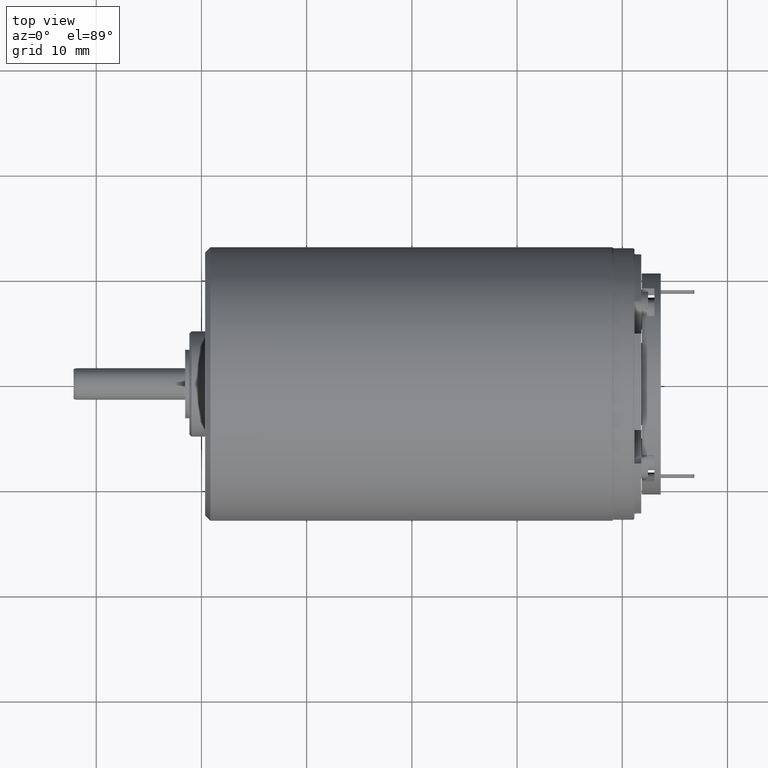
[diagram: clean part render]
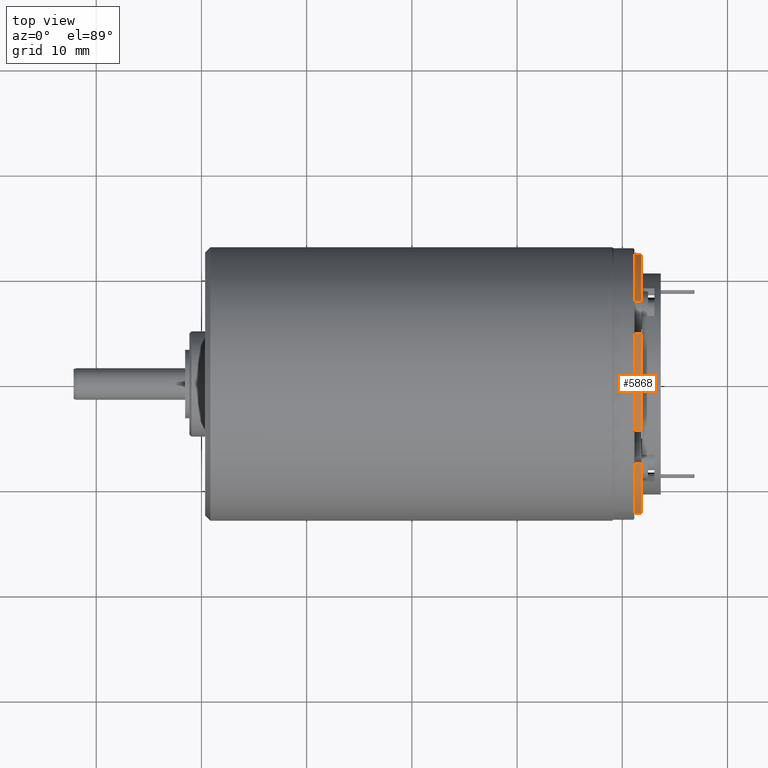
[diagram: same view with one face highlighted and labeled with its STEP entity id]
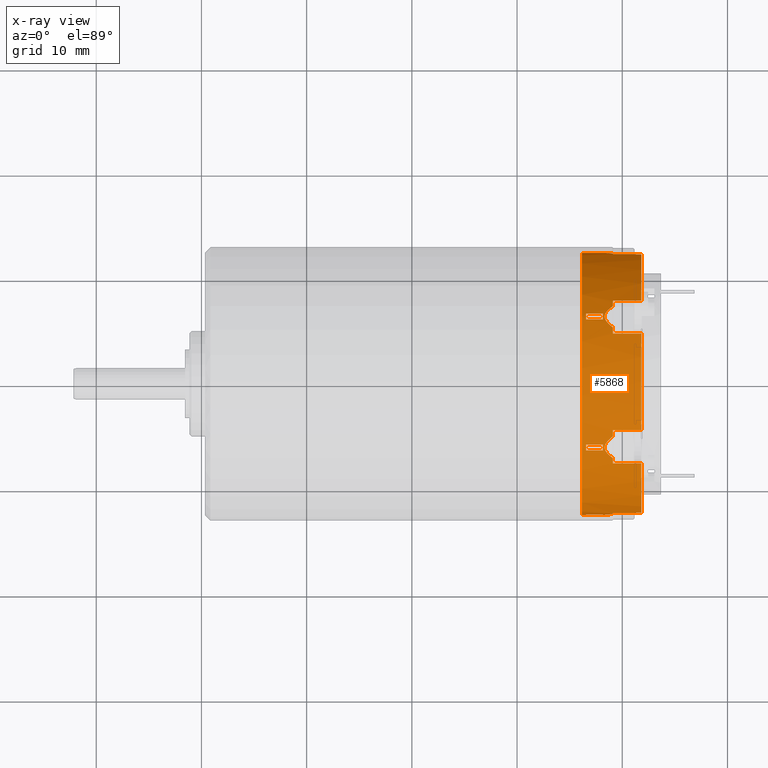
[diagram: x-ray of the same camera — body ghosted, the highlighted face saturated]
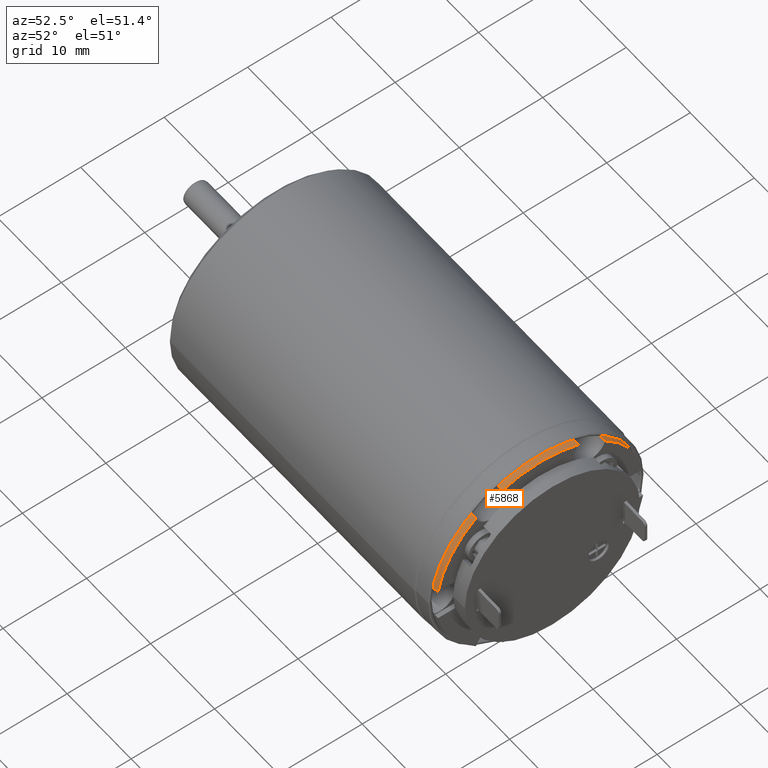
[diagram: same view with one face highlighted and labeled with its STEP entity id]
A machine part, top view. The second image highlights one B-rep face of the part: STEP entity #5868.
The next image is the same camera in x-ray: the body ghosted, the highlighted face saturated — about 0% of this face is hidden behind the body in this view.
A second angle (auxiliary view) of the same face is appended — the face is thin or edge-on in the first view.
In plain terms, the highlighted cylindrical surface (partial cylindrical patch) has radius 12.45 mm, axis along (-1, 0, 0).
Its self-contained STEP definition (entity closure, byte-faithful):
#891=CARTESIAN_POINT('',(2.180271496615E1,0.E0,0.E0));
#892=DIRECTION('',(-1.E0,0.E0,0.E0));
#893=DIRECTION('',(0.E0,6.208052959691E-1,7.839647852402E-1));
#894=AXIS2_PLACEMENT_3D('',#891,#892,#893);
#950=CARTESIAN_POINT('',(2.180271496615E1,0.E0,0.E0));
#951=DIRECTION('',(-1.E0,0.E0,0.E0));
#952=DIRECTION('',(0.E0,-9.870126466330E-1,1.606425702811E-1));
#953=AXIS2_PLACEMENT_3D('',#950,#951,#952);
#965=CARTESIAN_POINT('',(2.180271496615E1,0.E0,0.E0));
#966=DIRECTION('',(-1.E0,0.E0,0.E0));
#967=DIRECTION('',(0.E0,-3.685307717057E-1,9.296155497333E-1));
#968=AXIS2_PLACEMENT_3D('',#965,#966,#967);
#1030=DIRECTION('',(-1.E0,-1.644774851297E-13,-1.690828547133E-13));
#1031=VECTOR('',#1030,2.7E0);
#1032=CARTESIAN_POINT('',(2.180271496615E1,4.588208107736E0,1.157371359418E1));
#1033=LINE('',#1032,#1031);
#1034=DIRECTION('',(1.E0,0.E0,3.532976380585E-13));
#1035=VECTOR('',#1034,2.7E0);
#1036=CARTESIAN_POINT('',(1.910271496615E1,7.729025934817E0,9.760361576240E0));
#1037=LINE('',#1036,#1035);
#1038=DIRECTION('',(1.E0,0.E0,0.E0));
#1039=VECTOR('',#1038,4.E-1);
#1040=CARTESIAN_POINT('',(1.615271496615E1,1.245E1,0.E0));
#1041=LINE('',#1040,#1039);
#1042=DIRECTION('',(1.E0,3.124141150696E-13,0.E0));
#1043=VECTOR('',#1042,1.705771366E-1);
#1044=CARTESIAN_POINT('',(1.815271496615E1,1.245E1,0.E0));
#1045=LINE('',#1044,#1043);
#1046=CARTESIAN_POINT('',(1.910271496615E1,7.215436275989E0,1.014593412886E1));
#1047=CARTESIAN_POINT('',(1.900554157417E1,7.147763870696E0,1.019406039519E1));
#1048=CARTESIAN_POINT('',(1.882669407456E1,7.013894538743E0,1.028723900721E1));
#1049=CARTESIAN_POINT('',(1.860701999276E1,6.814206145042E0,1.042055842380E1));
#1050=CARTESIAN_POINT('',(1.844262371837E1,6.614103594959E0,1.054869483037E1));
#1051=CARTESIAN_POINT('',(1.834340605230E1,6.414230633054E0,1.067133216690E1));
#1052=CARTESIAN_POINT('',(1.831323669120E1,6.225319845262E0,1.078254737841E1));
#1053=CARTESIAN_POINT('',(1.834339979985E1,6.034546346835E0,1.089054344214E1));
#1054=CARTESIAN_POINT('',(1.844261722665E1,5.828395644684E0,1.100232401110E1));
#1055=CARTESIAN_POINT('',(1.860700915962E1,5.617377356940E0,1.111154870072E1));
#1056=CARTESIAN_POINT('',(1.882668278056E1,5.402072706062E0,1.121782575153E1));
#1057=CARTESIAN_POINT('',(1.900553676291E1,5.254437073495E0,1.128717357958E1));
#1058=CARTESIAN_POINT('',(1.910271496615E1,5.178918562721E0,1.132171817882E1));
#1060=CARTESIAN_POINT('',(1.910271496615E1,-5.178918562721E0,1.132171817882E1));
#1061=CARTESIAN_POINT('',(1.900554157417E1,-5.254433334598E0,1.128717528987E1));
#1062=CARTESIAN_POINT('',(1.882669407456E1,-5.402063045677E0,1.121783035362E1));
#1063=CARTESIAN_POINT('',(1.860701999276E1,-5.617365244109E0,1.111155484013E1));
#1064=CARTESIAN_POINT('',(1.844262371837E1,-5.828385902392E0,1.100232915168E1));
#1065=CARTESIAN_POINT('',(1.834340605230E1,-6.034529432233E0,1.089055275741E1));
#1066=CARTESIAN_POINT('',(1.831323669120E1,-6.225300024580E0,1.078255882188E1));
#1067=CARTESIAN_POINT('',(1.834339979985E1,-6.414214108494E0,1.067134215774E1));
#1068=CARTESIAN_POINT('',(1.844261722665E1,-6.614094271937E0,1.054870069715E1));
#1069=CARTESIAN_POINT('',(1.860700915962E1,-6.814194771747E0,1.042056584411E1));
#1070=CARTESIAN_POINT('',(1.882668278056E1,-7.013885723019E0,1.028724507230E1));
#1071=CARTESIAN_POINT('',(1.900553676291E1,-7.147760520092E0,1.019406277802E1));
#1072=CARTESIAN_POINT('',(1.910271496615E1,-7.215436275989E0,1.014593412886E1));
#1074=DIRECTION('',(-1.E0,3.124141150696E-13,-9.203199139759E-14));
#1075=VECTOR('',#1074,1.705771366E-1);
#1076=CARTESIAN_POINT('',(1.832329210275E1,-1.245E1,0.E0));
#1077=LINE('',#1076,#1075);
#1078=DIRECTION('',(-1.E0,0.E0,4.128234476237E-14));
#1079=VECTOR('',#1078,4.E-1);
#1080=CARTESIAN_POINT('',(1.655271496615E1,-1.245E1,-1.811141725284E-14));
#1081=LINE('',#1080,#1079);
#1082=CARTESIAN_POINT('',(1.655271496615E1,0.E0,0.E0));
#1083=DIRECTION('',(-1.E0,0.E0,0.E0));
#1084=DIRECTION('',(0.E0,-5.224274782876E-1,8.526837220975E-1));
#1085=AXIS2_PLACEMENT_3D('',#1082,#1083,#1084);
#1094=DIRECTION('',(1.E0,0.E0,0.E0));
#1095=VECTOR('',#1094,1.6E0);
#1096=CARTESIAN_POINT('',(1.655271496615E1,-5.941541839653E0,1.094077604961E1));
#1097=LINE('',#1096,#1095);
#1098=DIRECTION('',(-1.E0,-1.643130076445E-13,-3.286260152890E-13));
#1099=VECTOR('',#1098,1.6E0);
#1100=CARTESIAN_POINT('',(1.815271496615E1,-6.504222104681E0,1.061591234011E1));
#1101=LINE('',#1100,#1099);
#1102=CARTESIAN_POINT('',(1.815271496615E1,0.E0,0.E0));
#1103=DIRECTION('',(1.E0,0.E0,0.E0));
#1104=DIRECTION('',(0.E0,-4.772322762773E-1,8.787771927395E-1));
#1105=AXIS2_PLACEMENT_3D('',#1102,#1103,#1104);
#1112=CARTESIAN_POINT('',(1.655271496615E1,0.E0,0.E0));
#1113=DIRECTION('',(-1.E0,0.E0,0.E0));
#1114=DIRECTION('',(0.E0,4.772488368662E-1,8.787681990775E-1));
#1115=AXIS2_PLACEMENT_3D('',#1112,#1113,#1114);
#1124=DIRECTION('',(1.E0,0.E0,0.E0));
#1125=VECTOR('',#1124,1.6E0);
#1126=CARTESIAN_POINT('',(1.655271496615E1,6.504422161813E0,1.061578976529E1));
#1127=LINE('',#1126,#1125);
#1128=DIRECTION('',(-1.E0,-2.914335439641E-13,1.931788062848E-13));
#1129=VECTOR('',#1128,1.6E0);
#1130=CARTESIAN_POINT('',(1.815271496615E1,5.941748018985E0,1.094066407851E1));
#1131=LINE('',#1130,#1129);
#1132=CARTESIAN_POINT('',(1.815271496615E1,0.E0,0.E0));
#1133=DIRECTION('',(1.E0,0.E0,0.E0));
#1134=DIRECTION('',(0.E0,5.224435471335E-1,8.526738767305E-1));
#1135=AXIS2_PLACEMENT_3D('',#1132,#1133,#1134);
#1235=CARTESIAN_POINT('',(1.655271496615E1,0.E0,0.E0));
#1236=DIRECTION('',(-1.E0,0.E0,0.E0));
#1237=DIRECTION('',(0.E0,-1.E0,0.E0));
#1238=AXIS2_PLACEMENT_3D('',#1235,#1236,#1237);
#1254=DIRECTION('',(1.E0,0.E0,0.E0));
#1255=VECTOR('',#1254,1.6E0);
#1256=CARTESIAN_POINT('',(1.655271496615E1,-1.244576086957E1,
3.248636292337E-1));
#1257=LINE('',#1256,#1255);
#1262=CARTESIAN_POINT('',(1.815271496615E1,0.E0,0.E0));
#1263=DIRECTION('',(1.E0,0.E0,0.E0));
#1264=DIRECTION('',(0.E0,-9.996595075956E-1,2.609346419552E-2));
#1265=AXIS2_PLACEMENT_3D('',#1262,#1263,#1264);
#1293=CARTESIAN_POINT('',(1.832329210275E1,-1.245E1,0.E0));
#1295=CARTESIAN_POINT('',(1.832329210275E1,-1.245E1,0.E0));
#1296=CARTESIAN_POINT('',(1.832329210275E1,-1.245E1,3.629892691979E-2));
#1297=CARTESIAN_POINT('',(1.832845457964E1,-1.244967997183E1,
1.095079517601E-1));
#1298=CARTESIAN_POINT('',(1.835179518574E1,-1.244822457399E1,
2.199841964210E-1));
#1299=CARTESIAN_POINT('',(1.839201593320E1,-1.244568655556E1,
3.346012128070E-1));
#1300=CARTESIAN_POINT('',(1.845090896984E1,-1.244190156447E1,
4.546021106804E-1));
#1301=CARTESIAN_POINT('',(1.853100248492E1,-1.243662279646E1,
5.819673893021E-1));
#1302=CARTESIAN_POINT('',(1.863466567999E1,-1.242956440593E1,
7.175954500490E-1));
#1303=CARTESIAN_POINT('',(1.876289827314E1,-1.242047852958E1,
8.610992582666E-1));
#1304=CARTESIAN_POINT('',(1.891680900666E1,-1.240905672689E1,1.012930306687E0));
#1305=CARTESIAN_POINT('',(1.903774372681E1,-1.239959833455E1,1.120510508880E0));
#1306=CARTESIAN_POINT('',(1.910271496615E1,-1.239435483871E1,1.175784049966E0));
#1318=CARTESIAN_POINT('',(1.910271496615E1,0.E0,0.E0));
#1319=DIRECTION('',(-1.E0,0.E0,0.E0));
#1320=DIRECTION('',(0.E0,-9.955305091333E-1,9.444048594102E-2));
#1321=AXIS2_PLACEMENT_3D('',#1318,#1319,#1320);
#1342=DIRECTION('',(1.E0,4.085620730621E-13,6.600780528226E-14));
#1343=VECTOR('',#1342,2.2E0);
#1344=CARTESIAN_POINT('',(1.910271496615E1,-1.231723404255E1,1.813352017941E0));
#1345=LINE('',#1344,#1343);
#1356=CARTESIAN_POINT('',(2.130271496615E1,0.E0,0.E0));
#1357=DIRECTION('',(-1.E0,0.E0,0.E0));
#1358=DIRECTION('',(0.E0,-9.893360676750E-1,1.456507644932E-1));
#1359=AXIS2_PLACEMENT_3D('',#1356,#1357,#1358);
#1404=DIRECTION('',(1.E0,5.364597654989E-13,-3.685940441756E-14));
#1405=VECTOR('',#1404,5.E-1);
#1406=CARTESIAN_POINT('',(2.130271496615E1,-1.228830745058E1,2.E0));
#1407=LINE('',#1406,#1405);
#1604=DIRECTION('',(-1.E0,-5.258016244625E-13,-8.171241461241E-14));
#1605=VECTOR('',#1604,5.E-1);
#1606=CARTESIAN_POINT('',(2.180271496615E1,1.228830745058E1,2.E0));
#1607=LINE('',#1606,#1605);
#1632=CARTESIAN_POINT('',(2.130271496615E1,0.E0,0.E0));
#1633=DIRECTION('',(-1.E0,0.E0,0.E0));
#1634=DIRECTION('',(0.E0,9.870126466330E-1,1.606425702811E-1));
#1635=AXIS2_PLACEMENT_3D('',#1632,#1633,#1634);
#1657=DIRECTION('',(-1.E0,-4.101769429161E-13,9.840613172814E-14));
#1658=VECTOR('',#1657,2.2E0);
#1659=CARTESIAN_POINT('',(2.130271496615E1,1.231723404255E1,1.813352017940E0));
#1660=LINE('',#1659,#1658);
#1676=CARTESIAN_POINT('',(1.910271496615E1,0.E0,0.E0));
#1677=DIRECTION('',(-1.E0,0.E0,0.E0));
#1678=DIRECTION('',(0.E0,9.893360676750E-1,1.456507644932E-1));
#1679=AXIS2_PLACEMENT_3D('',#1676,#1677,#1678);
#1691=CARTESIAN_POINT('',(1.910271496615E1,1.239435483871E1,1.175784049966E0));
#1692=CARTESIAN_POINT('',(1.903819142609E1,1.239956220303E1,1.120891383935E0));
#1693=CARTESIAN_POINT('',(1.891793771405E1,1.240896972761E1,1.013955830340E0));
#1694=CARTESIAN_POINT('',(1.876441139774E1,1.242036859477E1,8.626677068914E-1));
#1695=CARTESIAN_POINT('',(1.863608246118E1,1.242946603312E1,7.192900811462E-1));
#1696=CARTESIAN_POINT('',(1.853221089793E1,1.243654207423E1,5.837079415812E-1));
#1697=CARTESIAN_POINT('',(1.845149073116E1,1.244186403509E1,4.557125834516E-1));
#1698=CARTESIAN_POINT('',(1.839213790391E1,1.244567885130E1,3.349219743573E-1));
#1699=CARTESIAN_POINT('',(1.835189097794E1,1.244821856613E1,2.203469959935E-1));
#1700=CARTESIAN_POINT('',(1.832842878804E1,1.244968159013E1,1.094337987637E-1));
#1701=CARTESIAN_POINT('',(1.832329210275E1,1.245E1,3.625611473060E-2));
#1702=CARTESIAN_POINT('',(1.832329210275E1,1.245E1,0.E0));
#1704=CARTESIAN_POINT('',(1.832329210275E1,1.245E1,0.E0));
#1806=CARTESIAN_POINT('',(1.815271496615E1,0.E0,0.E0));
#1807=DIRECTION('',(1.E0,0.E0,0.E0));
#1808=DIRECTION('',(0.E0,1.E0,0.E0));
#1809=AXIS2_PLACEMENT_3D('',#1806,#1807,#1808);
#1834=DIRECTION('',(-1.E0,6.017408793471E-13,-2.938968513001E-13));
#1835=VECTOR('',#1834,1.599999999999E0);
#1836=CARTESIAN_POINT('',(1.815271496615E1,1.244576086957E1,3.248636292342E-1));
#1837=LINE('',#1836,#1835);
#1838=CARTESIAN_POINT('',(1.655271496615E1,0.E0,0.E0));
#1839=DIRECTION('',(-1.E0,0.E0,0.E0));
#1840=DIRECTION('',(0.E0,9.996595075956E-1,2.609346419552E-2));
#1841=AXIS2_PLACEMENT_3D('',#1838,#1839,#1840);
#1863=CARTESIAN_POINT('',(1.615271496615E1,0.E0,0.E0));
#1864=DIRECTION('',(1.E0,0.E0,0.E0));
#1865=DIRECTION('',(0.E0,1.E0,0.E0));
#1866=AXIS2_PLACEMENT_3D('',#1863,#1864,#1865);
#2728=CARTESIAN_POINT('',(1.910271496615E1,0.E0,0.E0));
#2729=DIRECTION('',(-1.E0,0.E0,0.E0));
#2730=DIRECTION('',(0.E0,5.795531145374E-1,8.149344681813E-1));
#2731=AXIS2_PLACEMENT_3D('',#2728,#2729,#2730);
#2743=CARTESIAN_POINT('',(1.910271496615E1,0.E0,0.E0));
#2744=DIRECTION('',(-1.E0,0.E0,0.E0));
#2745=DIRECTION('',(0.E0,3.685307717057E-1,9.296155497333E-1));
#2746=AXIS2_PLACEMENT_3D('',#2743,#2744,#2745);
#2748=DIRECTION('',(-1.E0,1.180948343231E-13,1.118446898882E-14));
#2749=VECTOR('',#2748,2.7E0);
#2750=CARTESIAN_POINT('',(2.180271496615E1,-7.729025934817E0,9.760361576240E0));
#2751=LINE('',#2750,#2749);
#2752=DIRECTION('',(1.E0,0.E0,3.361919796050E-13));
#2753=VECTOR('',#2752,2.7E0);
#2754=CARTESIAN_POINT('',(1.910271496615E1,-4.588208107736E0,1.157371359418E1));
#2755=LINE('',#2754,#2753);
#2766=CARTESIAN_POINT('',(1.910271496615E1,0.E0,0.E0));
#2767=DIRECTION('',(-1.E0,0.E0,0.E0));
#2768=DIRECTION('',(0.E0,-4.159773945961E-1,9.093749541224E-1));
#2769=AXIS2_PLACEMENT_3D('',#2766,#2767,#2768);
#2781=CARTESIAN_POINT('',(1.910271496615E1,0.E0,0.E0));
#2782=DIRECTION('',(-1.E0,0.E0,0.E0));
#2783=DIRECTION('',(0.E0,-6.208052959691E-1,7.839647852402E-1));
#2784=AXIS2_PLACEMENT_3D('',#2781,#2782,#2783);
#3767=CARTESIAN_POINT('',(1.655271496615E1,-1.245E1,0.E0));
#3769=VERTEX_POINT('',#3767);
#3772=CARTESIAN_POINT('',(1.815271496615E1,-1.245E1,0.E0));
#3773=VERTEX_POINT('',#3772);
#3775=VERTEX_POINT('',#1293);
#3818=VERTEX_POINT('',#1704);
#3820=CARTESIAN_POINT('',(1.815271496615E1,1.245E1,0.E0));
#3822=VERTEX_POINT('',#3820);
#3825=CARTESIAN_POINT('',(1.655271496615E1,1.245E1,0.E0));
#3826=VERTEX_POINT('',#3825);
#3843=CARTESIAN_POINT('',(1.655271496615E1,1.244576086957E1,3.248636292342E-1));
#3844=VERTEX_POINT('',#3843);
#3845=CARTESIAN_POINT('',(1.815271496615E1,1.244576086957E1,3.248636292342E-1));
#3846=VERTEX_POINT('',#3845);
#3847=VERTEX_POINT('',#1691);
#3848=CARTESIAN_POINT('',(1.910271496615E1,1.231723404255E1,1.813352017940E0));
#3849=VERTEX_POINT('',#3848);
#3850=CARTESIAN_POINT('',(2.130271496615E1,1.231723404255E1,1.813352017940E0));
#3851=VERTEX_POINT('',#3850);
#3852=CARTESIAN_POINT('',(2.130271496615E1,1.228830745058E1,2.E0));
#3853=VERTEX_POINT('',#3852);
#3854=CARTESIAN_POINT('',(2.180271496615E1,1.228830745058E1,2.E0));
#3855=VERTEX_POINT('',#3854);
#3856=CARTESIAN_POINT('',(2.180271496615E1,7.729025934815E0,9.760361576240E0));
#3857=VERTEX_POINT('',#3856);
#3858=CARTESIAN_POINT('',(1.910271496615E1,7.729025934817E0,9.760361576240E0));
#3859=VERTEX_POINT('',#3858);
#3860=CARTESIAN_POINT('',(1.910271496615E1,7.215436275991E0,1.014593412886E1));
#3861=VERTEX_POINT('',#3860);
#3862=CARTESIAN_POINT('',(1.910271496615E1,4.588208107735E0,1.157371359418E1));
#3863=CARTESIAN_POINT('',(1.910271496615E1,5.178918562721E0,1.132171817882E1));
#3864=VERTEX_POINT('',#3862);
#3865=VERTEX_POINT('',#3863);
#3866=CARTESIAN_POINT('',(2.180271496615E1,4.588208107736E0,1.157371359418E1));
#3867=VERTEX_POINT('',#3866);
#3868=CARTESIAN_POINT('',(2.180271496615E1,-4.588208107735E0,1.157371359418E1));
#3869=VERTEX_POINT('',#3868);
#3870=CARTESIAN_POINT('',(1.910271496615E1,-4.588208107736E0,1.157371359418E1));
#3871=VERTEX_POINT('',#3870);
#3872=CARTESIAN_POINT('',(1.910271496615E1,-5.178918562721E0,1.132171817882E1));
#3873=VERTEX_POINT('',#3872);
#3874=CARTESIAN_POINT('',(1.910271496615E1,-7.729025934815E0,9.760361576240E0));
#3875=CARTESIAN_POINT('',(1.910271496615E1,-7.215436275991E0,1.014593412886E1));
#3876=VERTEX_POINT('',#3874);
#3877=VERTEX_POINT('',#3875);
#3878=CARTESIAN_POINT('',(2.180271496615E1,-7.729025934817E0,9.760361576240E0));
#3879=VERTEX_POINT('',#3878);
#3880=CARTESIAN_POINT('',(2.180271496615E1,-1.228830745058E1,2.E0));
#3881=VERTEX_POINT('',#3880);
#3882=CARTESIAN_POINT('',(2.130271496615E1,-1.228830745058E1,2.E0));
#3883=VERTEX_POINT('',#3882);
#3884=CARTESIAN_POINT('',(2.130271496615E1,-1.231723404255E1,1.813352017940E0));
#3885=VERTEX_POINT('',#3884);
#3886=CARTESIAN_POINT('',(1.910271496615E1,-1.231723404255E1,1.813352017941E0));
#3887=VERTEX_POINT('',#3886);
#3888=CARTESIAN_POINT('',(1.910271496615E1,-1.239435483871E1,1.175784049966E0));
#3889=VERTEX_POINT('',#3888);
#3890=CARTESIAN_POINT('',(1.815271496615E1,-1.244576086957E1,
3.248636292342E-1));
#3891=VERTEX_POINT('',#3890);
#3892=CARTESIAN_POINT('',(1.655271496615E1,-1.244576086957E1,
3.248636292337E-1));
#3893=VERTEX_POINT('',#3892);
#3894=CARTESIAN_POINT('',(1.655271496615E1,-6.504222104681E0,1.061591234011E1));
#3895=CARTESIAN_POINT('',(1.655271496615E1,-5.941541839653E0,1.094077604961E1));
#3896=VERTEX_POINT('',#3894);
#3897=VERTEX_POINT('',#3895);
#3898=CARTESIAN_POINT('',(1.815271496615E1,-6.504222104681E0,1.061591234011E1));
#3899=VERTEX_POINT('',#3898);
#3900=CARTESIAN_POINT('',(1.815271496615E1,-5.941541839653E0,1.094077604961E1));
#3901=VERTEX_POINT('',#3900);
#3902=CARTESIAN_POINT('',(1.655271496615E1,5.941748018984E0,1.094066407851E1));
#3903=CARTESIAN_POINT('',(1.655271496615E1,6.504422161812E0,1.061578976529E1));
#3904=VERTEX_POINT('',#3902);
#3905=VERTEX_POINT('',#3903);
#3906=CARTESIAN_POINT('',(1.815271496615E1,5.941748018985E0,1.094066407851E1));
#3907=VERTEX_POINT('',#3906);
#3908=CARTESIAN_POINT('',(1.815271496615E1,6.504422161812E0,1.061578976529E1));
#3909=VERTEX_POINT('',#3908);
#4506=CARTESIAN_POINT('',(1.615271496615E1,1.245E1,0.E0));
#4507=CARTESIAN_POINT('',(1.615271496615E1,-1.245E1,0.E0));
#4508=VERTEX_POINT('',#4506);
#4509=VERTEX_POINT('',#4507);
#5778=CARTESIAN_POINT('',(2.191571496615E1,0.E0,0.E0));
#5779=DIRECTION('',(-1.E0,0.E0,0.E0));
#5780=DIRECTION('',(0.E0,1.E0,0.E0));
#5781=AXIS2_PLACEMENT_3D('',#5778,#5779,#5780);
#5782=CYLINDRICAL_SURFACE('',#5781,1.245E1);
#5784=ORIENTED_EDGE('',*,*,#5783,.T.);
#5786=ORIENTED_EDGE('',*,*,#5785,.F.);
#5788=ORIENTED_EDGE('',*,*,#5787,.F.);
#5790=ORIENTED_EDGE('',*,*,#5789,.F.);
#5792=ORIENTED_EDGE('',*,*,#5791,.T.);
#5794=ORIENTED_EDGE('',*,*,#5793,.F.);
#5796=ORIENTED_EDGE('',*,*,#5795,.F.);
#5798=ORIENTED_EDGE('',*,*,#5797,.F.);
#5800=ORIENTED_EDGE('',*,*,#5799,.F.);
#5802=ORIENTED_EDGE('',*,*,#5801,.F.);
#5803=ORIENTED_EDGE('',*,*,#5684,.F.);
#5804=ORIENTED_EDGE('',*,*,#5773,.F.);
#5806=ORIENTED_EDGE('',*,*,#5805,.F.);
#5808=ORIENTED_EDGE('',*,*,#5807,.T.);
#5810=ORIENTED_EDGE('',*,*,#5809,.F.);
#5811=ORIENTED_EDGE('',*,*,#5767,.F.);
#5812=ORIENTED_EDGE('',*,*,#5720,.F.);
#5814=ORIENTED_EDGE('',*,*,#5813,.F.);
#5816=ORIENTED_EDGE('',*,*,#5815,.F.);
#5818=ORIENTED_EDGE('',*,*,#5817,.T.);
#5820=ORIENTED_EDGE('',*,*,#5819,.F.);
#5822=ORIENTED_EDGE('',*,*,#5821,.F.);
#5823=ORIENTED_EDGE('',*,*,#5714,.F.);
#5825=ORIENTED_EDGE('',*,*,#5824,.F.);
#5827=ORIENTED_EDGE('',*,*,#5826,.F.);
#5829=ORIENTED_EDGE('',*,*,#5828,.F.);
#5831=ORIENTED_EDGE('',*,*,#5830,.F.);
#5833=ORIENTED_EDGE('',*,*,#5832,.F.);
#5835=ORIENTED_EDGE('',*,*,#5834,.T.);
#5837=ORIENTED_EDGE('',*,*,#5836,.F.);
#5839=ORIENTED_EDGE('',*,*,#5838,.F.);
#5841=ORIENTED_EDGE('',*,*,#5840,.F.);
#5843=ORIENTED_EDGE('',*,*,#5842,.T.);
#5845=ORIENTED_EDGE('',*,*,#5844,.F.);
#5846=EDGE_LOOP('',(#5784,#5786,#5788,#5790,#5792,#5794,#5796,#5798,#5800,#5802,
#5803,#5804,#5806,#5808,#5810,#5811,#5812,#5814,#5816,#5818,#5820,#5822,#5823,
#5825,#5827,#5829,#5831,#5833,#5835,#5837,#5839,#5841,#5843,#5845));
#5847=FACE_OUTER_BOUND('',#5846,.F.);
#5849=ORIENTED_EDGE('',*,*,#5848,.F.);
#5851=ORIENTED_EDGE('',*,*,#5850,.F.);
#5853=ORIENTED_EDGE('',*,*,#5852,.F.);
#5855=ORIENTED_EDGE('',*,*,#5854,.F.);
#5856=EDGE_LOOP('',(#5849,#5851,#5853,#5855));
#5857=FACE_BOUND('',#5856,.F.);
#5859=ORIENTED_EDGE('',*,*,#5858,.F.);
#5861=ORIENTED_EDGE('',*,*,#5860,.F.);
#5863=ORIENTED_EDGE('',*,*,#5862,.F.);
#5865=ORIENTED_EDGE('',*,*,#5864,.F.);
#5866=EDGE_LOOP('',(#5859,#5861,#5863,#5865));
#5867=FACE_BOUND('',#5866,.F.);
#5868=ADVANCED_FACE('',(#5847,#5857,#5867),#5782,.T.);
#895=CIRCLE('',#894,1.245E1);
#954=CIRCLE('',#953,1.245E1);
#969=CIRCLE('',#968,1.245E1);
#1059=B_SPLINE_CURVE_WITH_KNOTS('',3,(#1046,#1047,#1048,#1049,#1050,#1051,#1052,
#1053,#1054,#1055,#1056,#1057,#1058),.UNSPECIFIED.,.F.,.F.,(4,1,1,1,1,1,1,1,1,1,
4),(0.E0,1.E-1,2.E-1,3.E-1,4.E-1,5.E-1,6.E-1,7.E-1,8.E-1,9.E-1,1.E0),
.UNSPECIFIED.);
#1073=B_SPLINE_CURVE_WITH_KNOTS('',3,(#1060,#1061,#1062,#1063,#1064,#1065,#1066,
#1067,#1068,#1069,#1070,#1071,#1072),.UNSPECIFIED.,.F.,.F.,(4,1,1,1,1,1,1,1,1,1,
4),(0.E0,1.E-1,2.E-1,3.E-1,4.E-1,5.E-1,6.E-1,7.E-1,8.E-1,9.E-1,1.E0),
.UNSPECIFIED.);
#1086=CIRCLE('',#1085,1.245E1);
#1106=CIRCLE('',#1105,1.245E1);
#1116=CIRCLE('',#1115,1.245E1);
#1136=CIRCLE('',#1135,1.245E1);
#1239=CIRCLE('',#1238,1.245E1);
#1266=CIRCLE('',#1265,1.245E1);
#1307=B_SPLINE_CURVE_WITH_KNOTS('',3,(#1295,#1296,#1297,#1298,#1299,#1300,#1301,
#1302,#1303,#1304,#1305,#1306),.UNSPECIFIED.,.F.,.F.,(4,1,1,1,1,1,1,1,1,4),
(0.E0,1.111111111111E-1,2.222222222222E-1,3.333333333333E-1,4.444444444444E-1,
5.555555555556E-1,6.666666666667E-1,7.777777777778E-1,8.888888888889E-1,1.E0),
.UNSPECIFIED.);
#1322=CIRCLE('',#1321,1.245E1);
#1360=CIRCLE('',#1359,1.245E1);
#1636=CIRCLE('',#1635,1.245E1);
#1680=CIRCLE('',#1679,1.245E1);
#1703=B_SPLINE_CURVE_WITH_KNOTS('',3,(#1691,#1692,#1693,#1694,#1695,#1696,#1697,
#1698,#1699,#1700,#1701,#1702),.UNSPECIFIED.,.F.,.F.,(4,1,1,1,1,1,1,1,1,4),
(0.E0,1.111111111111E-1,2.222222222222E-1,3.333333333333E-1,4.444444444444E-1,
5.555555555556E-1,6.666666666667E-1,7.777777777778E-1,8.888888888889E-1,1.E0),
.UNSPECIFIED.);
#1810=CIRCLE('',#1809,1.245E1);
#1842=CIRCLE('',#1841,1.245E1);
#1867=CIRCLE('',#1866,1.245E1);
#2732=CIRCLE('',#2731,1.245E1);
#2747=CIRCLE('',#2746,1.245E1);
#2770=CIRCLE('',#2769,1.245E1);
#2785=CIRCLE('',#2784,1.245E1);
#5684=EDGE_CURVE('',#3857,#3855,#895,.T.);
#5714=EDGE_CURVE('',#3881,#3879,#954,.T.);
#5720=EDGE_CURVE('',#3869,#3867,#969,.T.);
#5767=EDGE_CURVE('',#3867,#3864,#1033,.T.);
#5773=EDGE_CURVE('',#3859,#3857,#1037,.T.);
#5783=EDGE_CURVE('',#4508,#3826,#1041,.T.);
#5785=EDGE_CURVE('',#3844,#3826,#1842,.T.);
#5787=EDGE_CURVE('',#3846,#3844,#1837,.T.);
#5789=EDGE_CURVE('',#3822,#3846,#1810,.T.);
#5791=EDGE_CURVE('',#3822,#3818,#1045,.T.);
#5793=EDGE_CURVE('',#3847,#3818,#1703,.T.);
#5795=EDGE_CURVE('',#3849,#3847,#1680,.T.);
#5797=EDGE_CURVE('',#3851,#3849,#1660,.T.);
#5799=EDGE_CURVE('',#3853,#3851,#1636,.T.);
#5801=EDGE_CURVE('',#3855,#3853,#1607,.T.);
#5805=EDGE_CURVE('',#3861,#3859,#2732,.T.);
#5807=EDGE_CURVE('',#3861,#3865,#1059,.T.);
#5809=EDGE_CURVE('',#3864,#3865,#2747,.T.);
#5813=EDGE_CURVE('',#3871,#3869,#2755,.T.);
#5815=EDGE_CURVE('',#3873,#3871,#2770,.T.);
#5817=EDGE_CURVE('',#3873,#3877,#1073,.T.);
#5819=EDGE_CURVE('',#3876,#3877,#2785,.T.);
#5821=EDGE_CURVE('',#3879,#3876,#2751,.T.);
#5824=EDGE_CURVE('',#3883,#3881,#1407,.T.);
#5826=EDGE_CURVE('',#3885,#3883,#1360,.T.);
#5828=EDGE_CURVE('',#3887,#3885,#1345,.T.);
#5830=EDGE_CURVE('',#3889,#3887,#1322,.T.);
#5832=EDGE_CURVE('',#3775,#3889,#1307,.T.);
#5834=EDGE_CURVE('',#3775,#3773,#1077,.T.);
#5836=EDGE_CURVE('',#3891,#3773,#1266,.T.);
#5838=EDGE_CURVE('',#3893,#3891,#1257,.T.);
#5840=EDGE_CURVE('',#3769,#3893,#1239,.T.);
#5842=EDGE_CURVE('',#3769,#4509,#1081,.T.);
#5844=EDGE_CURVE('',#4508,#4509,#1867,.T.);
#5848=EDGE_CURVE('',#3904,#3905,#1116,.T.);
#5850=EDGE_CURVE('',#3907,#3904,#1131,.T.);
#5852=EDGE_CURVE('',#3909,#3907,#1136,.T.);
#5854=EDGE_CURVE('',#3905,#3909,#1127,.T.);
#5858=EDGE_CURVE('',#3896,#3897,#1086,.T.);
#5860=EDGE_CURVE('',#3899,#3896,#1101,.T.);
#5862=EDGE_CURVE('',#3901,#3899,#1106,.T.);
#5864=EDGE_CURVE('',#3897,#3901,#1097,.T.);